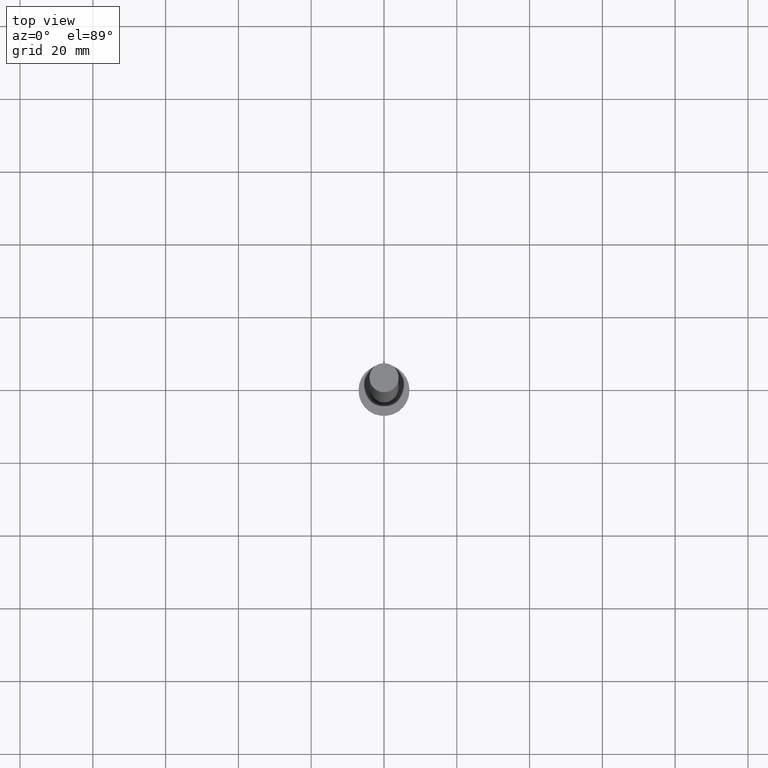
[diagram: clean part render]
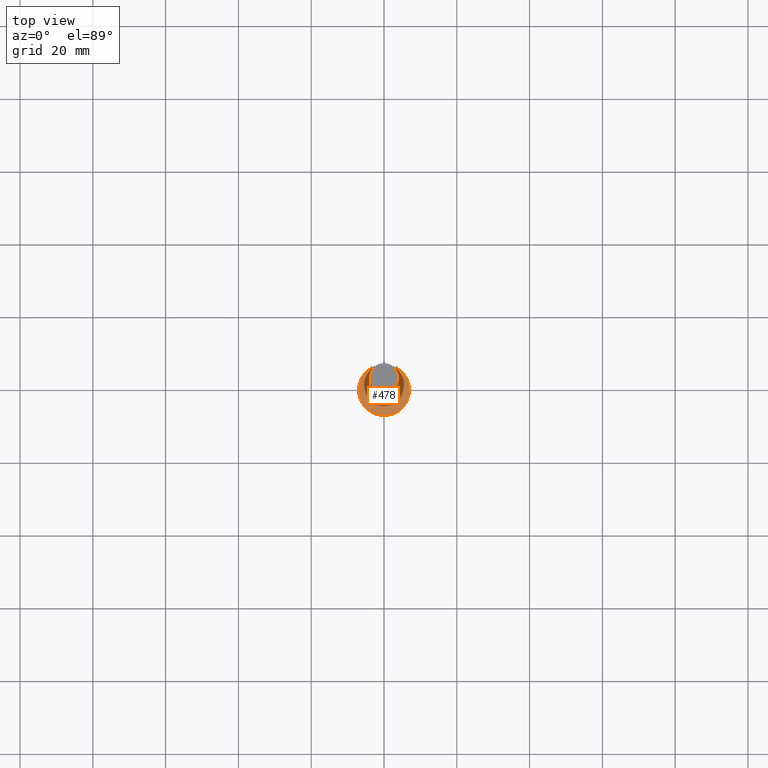
[diagram: same view with one face highlighted and labeled with its STEP entity id]
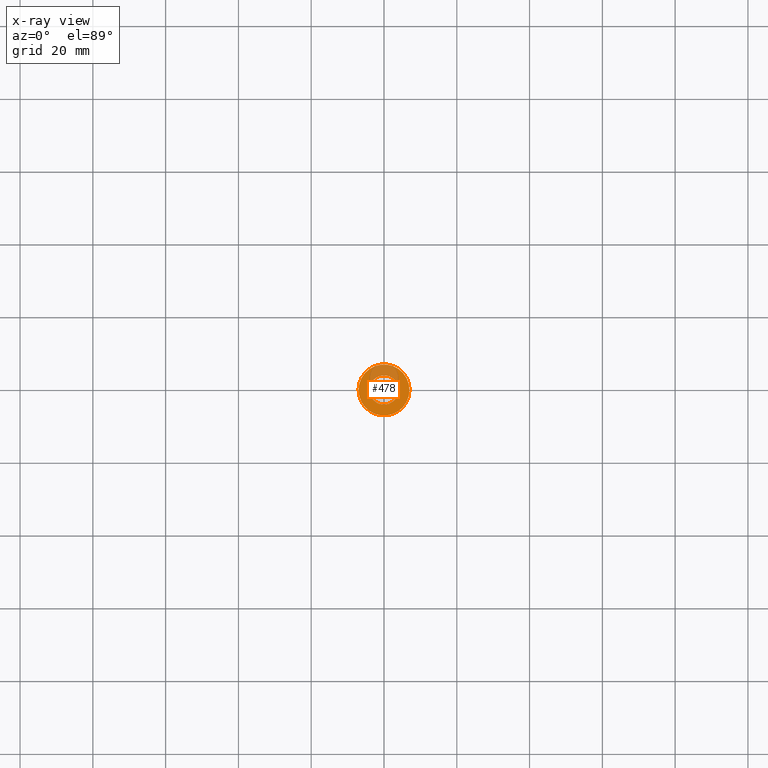
[diagram: x-ray of the same camera — body ghosted, the highlighted face saturated]
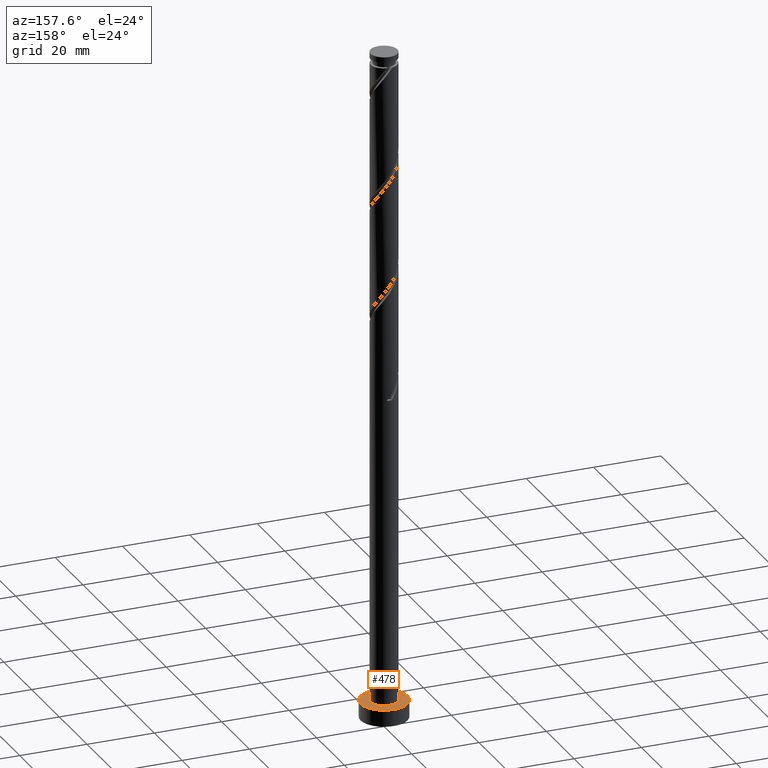
[diagram: same view with one face highlighted and labeled with its STEP entity id]
A machine part, top view. The second image highlights one B-rep face of the part: STEP entity #478.
The next image is the same camera in x-ray: the body ghosted, the highlighted face saturated — about 25% of this face is hidden behind the body in this view.
A second angle (auxiliary view) of the same face is appended — the face is thin or edge-on in the first view.
In plain terms, the highlighted planar face has unit normal (0, 0, 1).
Its self-contained STEP definition (entity closure, byte-faithful):
#42 = DIRECTION ( 'NONE',  ( 0.000000000000000000, 0.000000000000000000, 1.000000000000000000 ) ) ;
#118 = CARTESIAN_POINT ( 'NONE',  ( 7.000000000000000000, 8.572527594031473190E-16, 5.000000000000000000 ) ) ;
#131 = CIRCLE ( 'NONE', #298, 4.000000000000000000 ) ;
#169 = ORIENTED_EDGE ( 'NONE', *, *, #1409, .F. ) ;
#179 = VERTEX_POINT ( 'NONE', #806 ) ;
#216 = DIRECTION ( 'NONE',  ( 1.000000000000000000, 0.000000000000000000, -0.000000000000000000 ) ) ;
#270 = CIRCLE ( 'NONE', #1014, 7.000000000000000000 ) ;
#291 = CARTESIAN_POINT ( 'NONE',  ( -4.000000000000000000, 0.000000000000000000, 5.000000000000000000 ) ) ;
#298 = AXIS2_PLACEMENT_3D ( 'NONE', #1196, #630, #1157 ) ;
#337 = VERTEX_POINT ( 'NONE', #1238 ) ;
#343 = DIRECTION ( 'NONE',  ( 0.000000000000000000, 0.000000000000000000, 1.000000000000000000 ) ) ;
#360 = CARTESIAN_POINT ( 'NONE',  ( 0.000000000000000000, 0.000000000000000000, 5.000000000000000000 ) ) ;
#422 = CARTESIAN_POINT ( 'NONE',  ( 0.000000000000000000, 0.000000000000000000, 5.000000000000000000 ) ) ;
#430 = DIRECTION ( 'NONE',  ( 1.000000000000000000, 0.000000000000000000, 0.000000000000000000 ) ) ;
#439 = AXIS2_PLACEMENT_3D ( 'NONE', #1216, #1241, #957 ) ;
#478 = ADVANCED_FACE ( 'NONE', ( #1003, #1566 ), #1551, .T. ) ;
#630 = DIRECTION ( 'NONE',  ( 0.000000000000000000, 0.000000000000000000, 1.000000000000000000 ) ) ;
#646 = ORIENTED_EDGE ( 'NONE', *, *, #1084, .T. ) ;
#679 = VERTEX_POINT ( 'NONE', #118 ) ;
#724 = ORIENTED_EDGE ( 'NONE', *, *, #1310, .T. ) ;
#741 = DIRECTION ( 'NONE',  ( 1.000000000000000000, 0.000000000000000000, 0.000000000000000000 ) ) ;
#806 = CARTESIAN_POINT ( 'NONE',  ( -7.000000000000000000, 0.000000000000000000, 5.000000000000000000 ) ) ;
#850 = EDGE_LOOP ( 'NONE', ( #646, #724 ) ) ;
#870 = ORIENTED_EDGE ( 'NONE', *, *, #1205, .F. ) ;
#880 = DIRECTION ( 'NONE',  ( 0.000000000000000000, 0.000000000000000000, 1.000000000000000000 ) ) ;
#957 = DIRECTION ( 'NONE',  ( 1.000000000000000000, 0.000000000000000000, 0.000000000000000000 ) ) ;
#1003 = FACE_BOUND ( 'NONE', #1253, .T. ) ;
#1014 = AXIS2_PLACEMENT_3D ( 'NONE', #422, #42, #430 ) ;
#1075 = CIRCLE ( 'NONE', #1737, 7.000000000000000000 ) ;
#1084 = EDGE_CURVE ( 'NONE', #179, #679, #1075, .T. ) ;
#1157 = DIRECTION ( 'NONE',  ( 1.000000000000000000, 0.000000000000000000, 0.000000000000000000 ) ) ;
#1188 = CIRCLE ( 'NONE', #439, 4.000000000000000000 ) ;
#1196 = CARTESIAN_POINT ( 'NONE',  ( 0.000000000000000000, 0.000000000000000000, 5.000000000000000000 ) ) ;
#1205 = EDGE_CURVE ( 'NONE', #1499, #337, #131, .T. ) ;
#1208 = AXIS2_PLACEMENT_3D ( 'NONE', #1413, #880, #216 ) ;
#1216 = CARTESIAN_POINT ( 'NONE',  ( 0.000000000000000000, 0.000000000000000000, 5.000000000000000000 ) ) ;
#1238 = CARTESIAN_POINT ( 'NONE',  ( 4.000000000000000000, 4.898587196589412829E-16, 5.000000000000000000 ) ) ;
#1241 = DIRECTION ( 'NONE',  ( 0.000000000000000000, 0.000000000000000000, 1.000000000000000000 ) ) ;
#1253 = EDGE_LOOP ( 'NONE', ( #870, #169 ) ) ;
#1310 = EDGE_CURVE ( 'NONE', #679, #179, #270, .T. ) ;
#1409 = EDGE_CURVE ( 'NONE', #337, #1499, #1188, .T. ) ;
#1413 = CARTESIAN_POINT ( 'NONE',  ( 0.000000000000000000, 0.000000000000000000, 5.000000000000000000 ) ) ;
#1499 = VERTEX_POINT ( 'NONE', #291 ) ;
#1551 = PLANE ( 'NONE',  #1208 ) ;
#1566 = FACE_OUTER_BOUND ( 'NONE', #850, .T. ) ;
#1737 = AXIS2_PLACEMENT_3D ( 'NONE', #360, #343, #741 ) ;